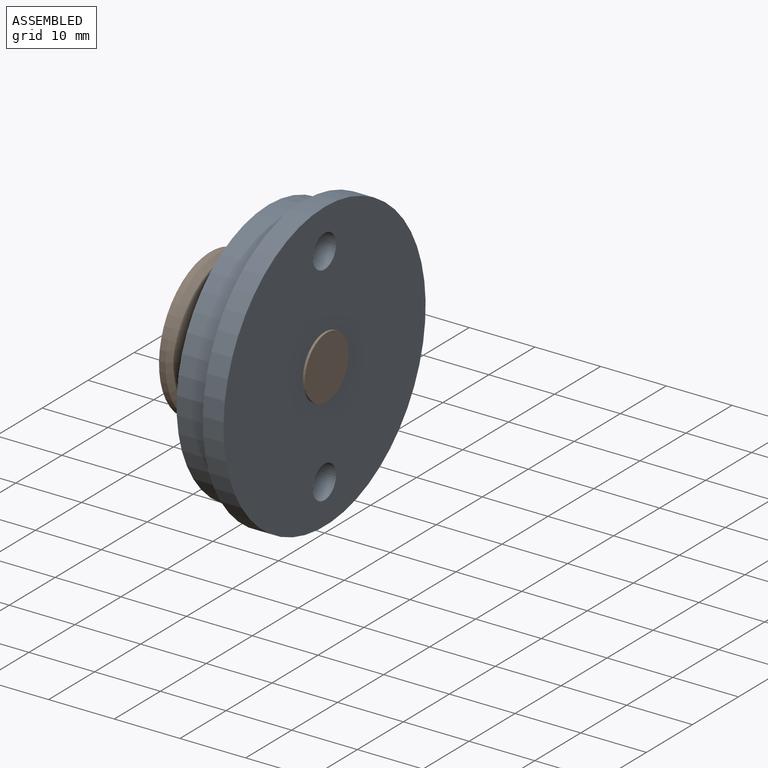
[diagram: assembled view]
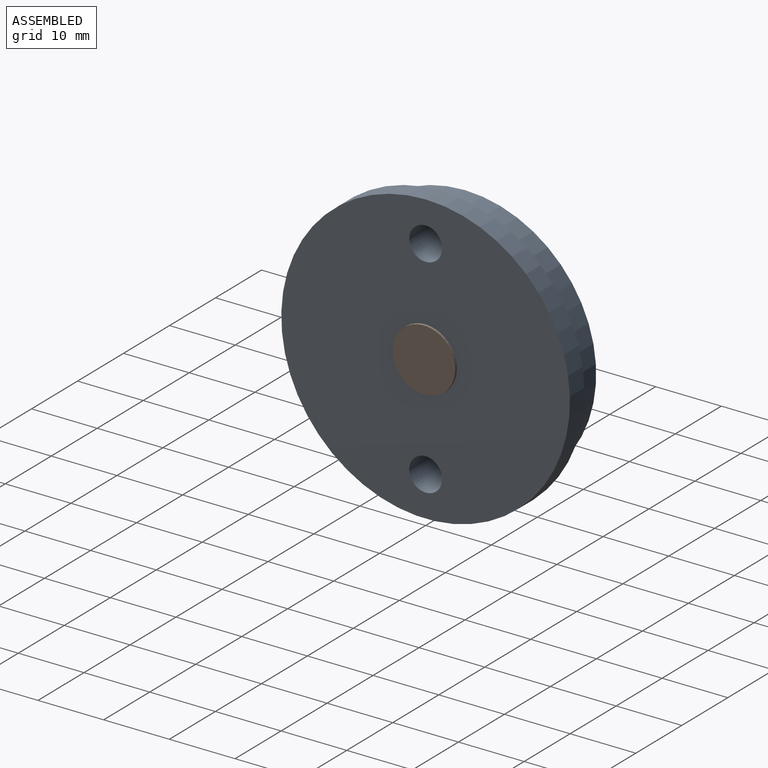
[diagram: assembled view, second angle]
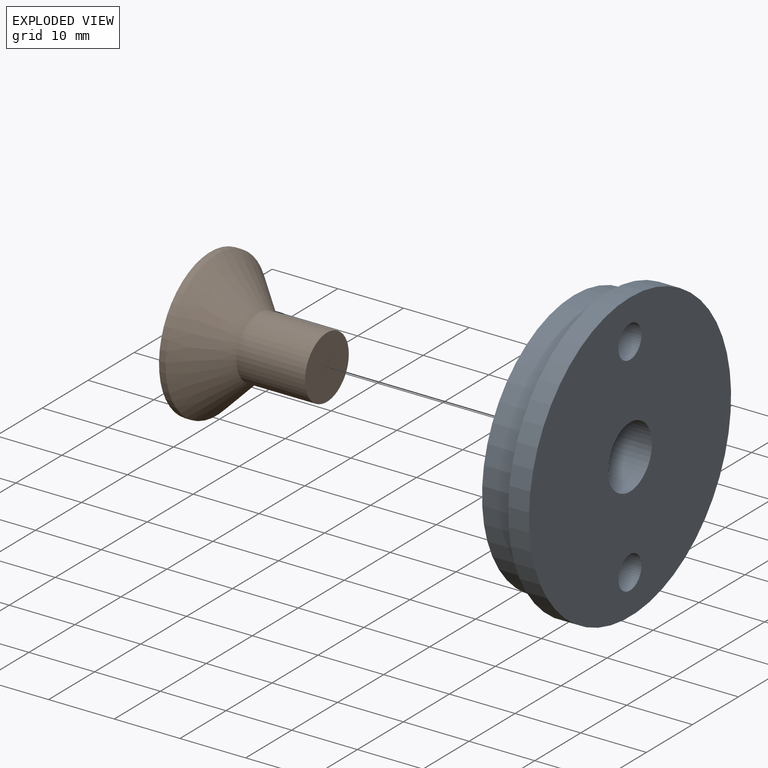
[diagram: exploded view]
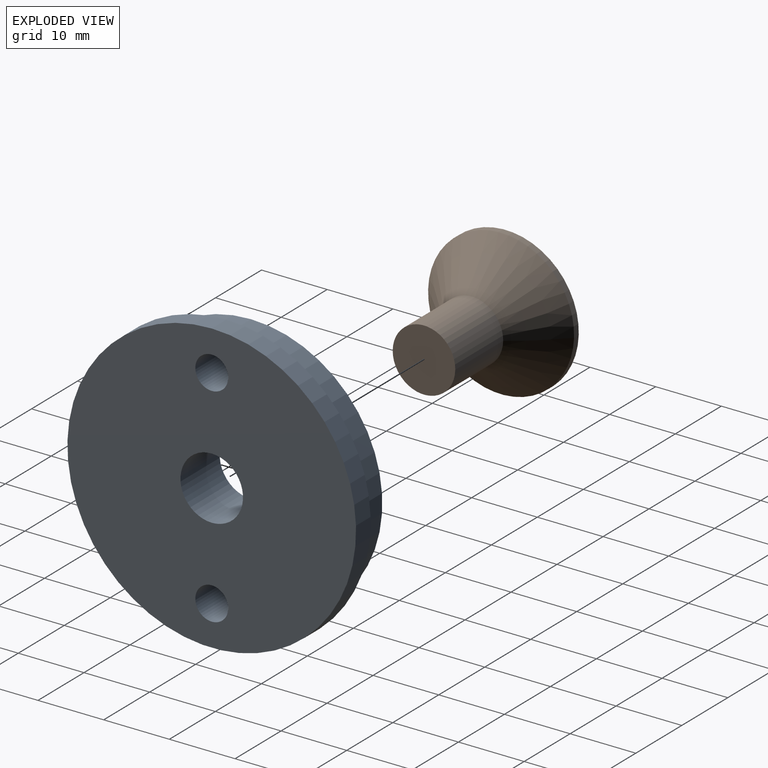
[diagram: exploded view, second angle]
ASSEMBLY  parts=2 mates=2
PART A: 8 faces, bbox 43.9x43.9x8.5 mm
  f0: plane 43.94x43.94mm, normal (0,0,1), area 1406mm2, adj f4,f5,f6,f7
  f1: plane 39.98x39.98mm, normal (0,0,-1), area 1144.8mm2, adj f2,f5,f6,f7
  f2: cylinder r=19.99mm len=39.98mm, axis (0,0,-1), area 673.1mm2, adj f1,f3
  f3: plane 43.94x43.94mm, normal (0,0,-1), area 261.2mm2, adj f2,f4
  f4: cylinder r=21.97mm len=43.94mm, axis (0,0,-1), area 438.3mm2, adj f0,f3
  f5: cylinder r=4.76mm len=9.53mm, axis (0,0,1), area 255.4mm2, adj f0,f1
  f6: cylinder r=2.5mm len=8.53mm, axis (0,0,-1), area 134.1mm2, adj f0,f1
  f7: cylinder r=2.5mm len=8.53mm, axis (0,0,-1), area 134.1mm2, adj f0,f1
PART B: 5 faces, bbox 22.2x22.2x17.8 mm
  f0: plane 9.53x9.53mm, normal (0,0,-1), area 71.3mm2, adj f1
  f1: cylinder r=4.76mm len=10.41mm, axis (0,0,1), area 311.6mm2, adj f0,f2
  f2: cone r=11.11mm half-angle=45deg, axis (0,0,1), area 447.9mm2, adj f1,f3
  f3: cylinder r=11.11mm len=22.23mm, axis (0,0,1), area 70.9mm2, adj f2,f4
  f4: plane 22.23x22.23mm, normal (0,0,1), area 387.9mm2, adj f3
PLACE A rot(axis=(0,1,0),90deg) t=(0,0,0)mm
PLACE B rot(axis=(-0.12,-0.99,0.12),90.8deg) t=(0.36,0,0)mm
MATE planar B.f1 <-> A.f2  axis (-1,0,0) through (-17.42,0,0)mm
MATE cylindrical A.f2 <-> B.f1  axis (-1,0,0) through (-8.53,0,0)mm
